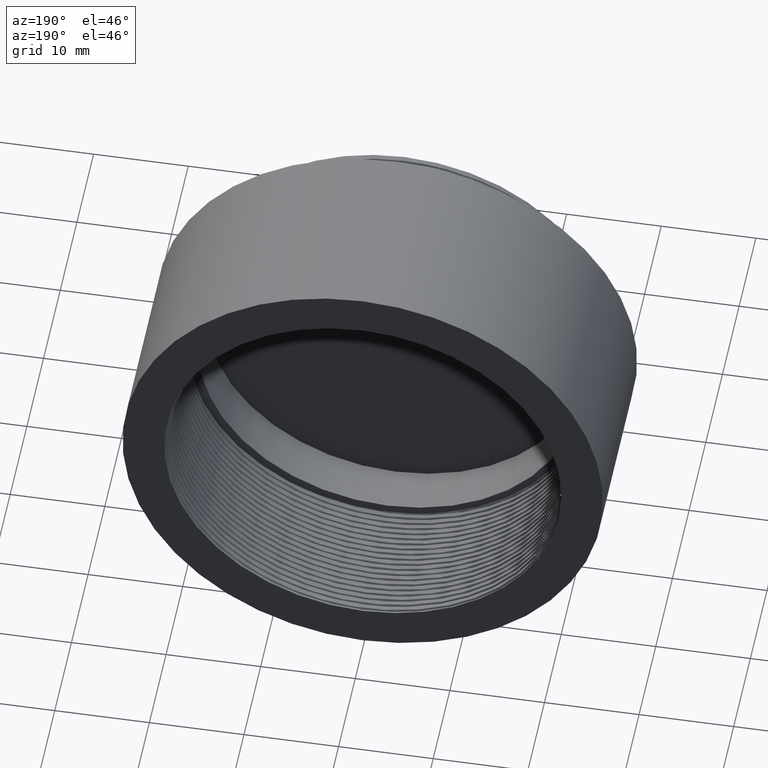
[diagram: clean part render]
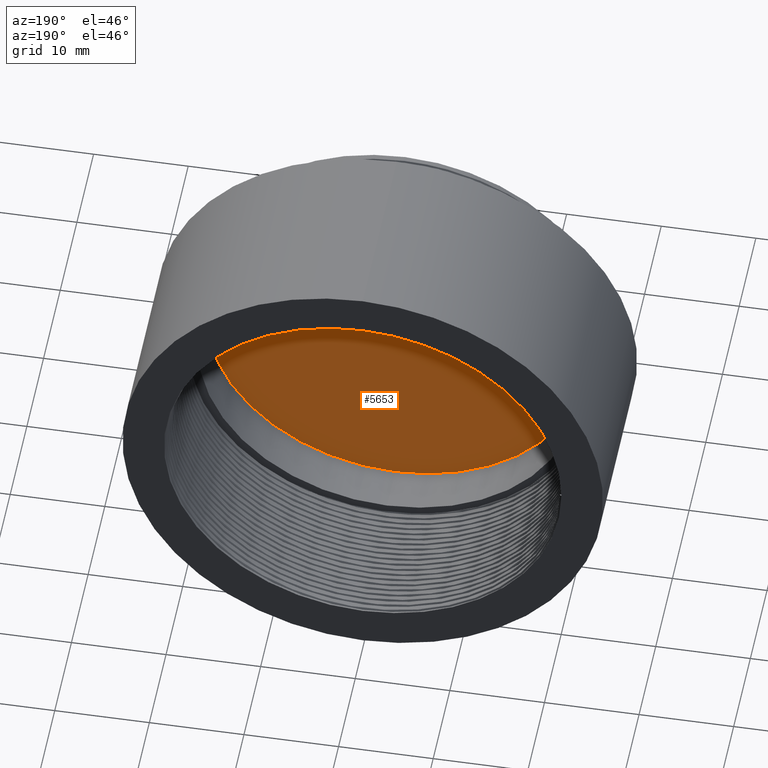
[diagram: same view with one face highlighted and labeled with its STEP entity id]
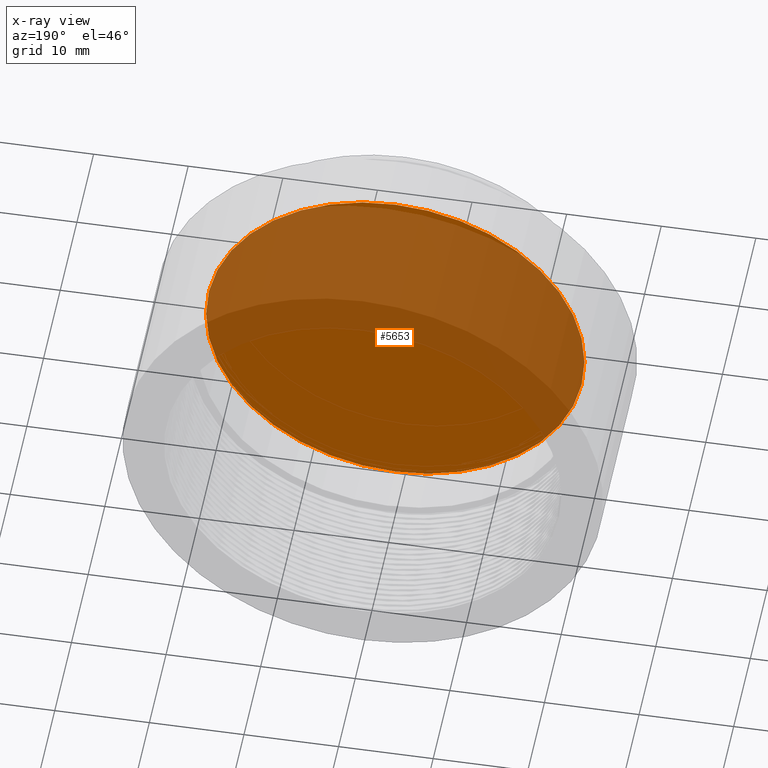
[diagram: x-ray of the same camera — body ghosted, the highlighted face saturated]
A machine part, auxiliary view. The second image highlights one B-rep face of the part: STEP entity #5653.
The next image is the same camera in x-ray: the body ghosted, the highlighted face saturated — about 59% of this face is hidden behind the body in this view.
In plain terms, the highlighted planar face has unit normal (0, 1, 0).
Its self-contained STEP definition (entity closure, byte-faithful):
#3 = ORIENTED_EDGE ( 'NONE', *, *, #1659, .T. ) ;
#271 = AXIS2_PLACEMENT_3D ( 'NONE', #4326, #3860, #5926 ) ;
#611 = ORIENTED_EDGE ( 'NONE', *, *, #5872, .T. ) ;
#1274 = PLANE ( 'NONE',  #271 ) ;
#1613 = CARTESIAN_POINT ( 'NONE',  ( 2.449293598294706513E-15, 6.009999999999999787, 20.00000000000000000 ) ) ;
#1659 = EDGE_CURVE ( 'NONE', #1713, #5596, #1685, .T. ) ;
#1685 = CIRCLE ( 'NONE', #6649, 20.00000000000000000 ) ;
#1713 = VERTEX_POINT ( 'NONE', #1613 ) ;
#1896 = CIRCLE ( 'NONE', #6532, 20.00000000000000000 ) ;
#1941 = DIRECTION ( 'NONE',  ( 0.000000000000000000, 0.000000000000000000, 1.000000000000000000 ) ) ;
#2010 = DIRECTION ( 'NONE',  ( 0.000000000000000000, 1.000000000000000000, 0.000000000000000000 ) ) ;
#2707 = EDGE_LOOP ( 'NONE', ( #611, #3 ) ) ;
#3662 = CARTESIAN_POINT ( 'NONE',  ( 0.000000000000000000, 6.009999999999999787, -20.00000000000000000 ) ) ;
#3860 = DIRECTION ( 'NONE',  ( 0.000000000000000000, 1.000000000000000000, 0.000000000000000000 ) ) ;
#4164 = CARTESIAN_POINT ( 'NONE',  ( 0.000000000000000000, 6.009999999999999787, 0.000000000000000000 ) ) ;
#4326 = CARTESIAN_POINT ( 'NONE',  ( 0.000000000000000000, 6.009999999999999787, 0.000000000000000000 ) ) ;
#4635 = DIRECTION ( 'NONE',  ( 0.000000000000000000, 0.000000000000000000, 1.000000000000000000 ) ) ;
#4838 = FACE_OUTER_BOUND ( 'NONE', #2707, .T. ) ;
#5274 = DIRECTION ( 'NONE',  ( 0.000000000000000000, 1.000000000000000000, 0.000000000000000000 ) ) ;
#5543 = CARTESIAN_POINT ( 'NONE',  ( 0.000000000000000000, 6.009999999999999787, 0.000000000000000000 ) ) ;
#5596 = VERTEX_POINT ( 'NONE', #3662 ) ;
#5653 = ADVANCED_FACE ( 'NONE', ( #4838 ), #1274, .T. ) ;
#5872 = EDGE_CURVE ( 'NONE', #5596, #1713, #1896, .T. ) ;
#5926 = DIRECTION ( 'NONE',  ( 0.000000000000000000, -0.000000000000000000, 1.000000000000000000 ) ) ;
#6532 = AXIS2_PLACEMENT_3D ( 'NONE', #5543, #2010, #1941 ) ;
#6649 = AXIS2_PLACEMENT_3D ( 'NONE', #4164, #5274, #4635 ) ;